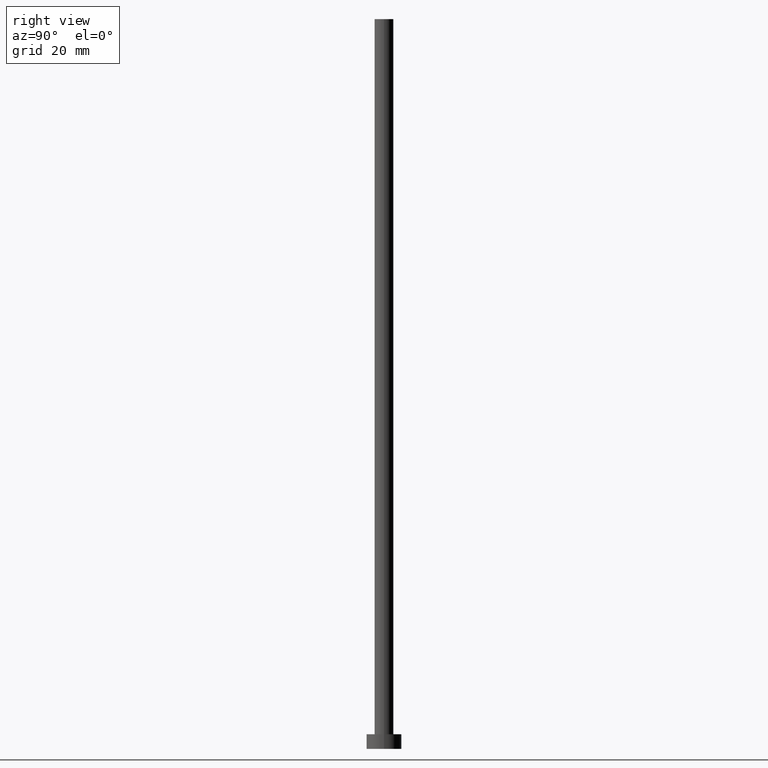
[diagram: clean part render]
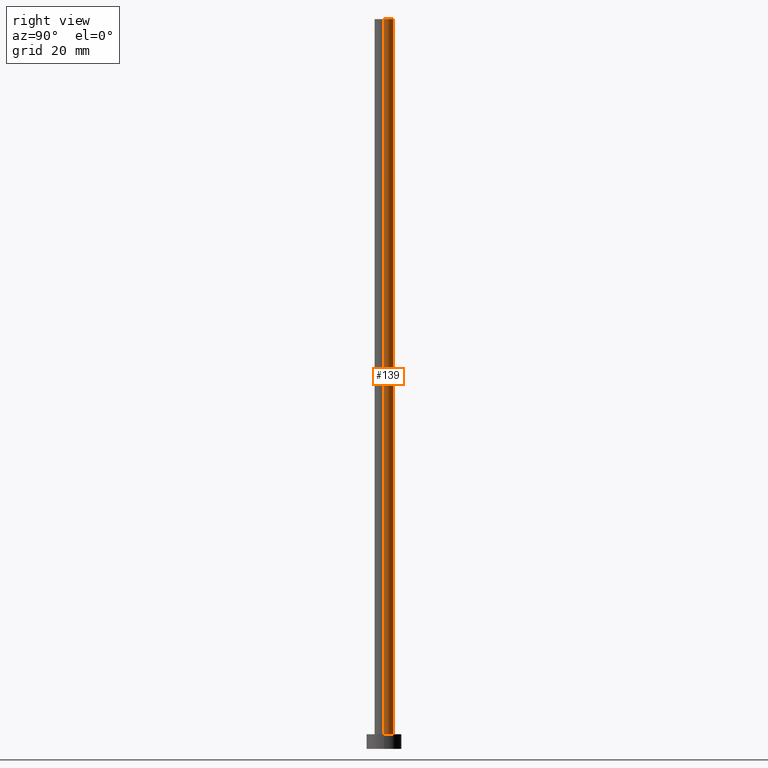
[diagram: same view with one face highlighted and labeled with its STEP entity id]
A machine part, right view. The second image highlights one B-rep face of the part: STEP entity #139.
In plain terms, the highlighted cylindrical surface (edge-blend (fillet) strip) has radius 3.25 mm, axis along (-0, -0, -1).
Its self-contained STEP definition (entity closure, byte-faithful):
#8 = LINE ( 'NONE', #184, #203 ) ;
#10 = ORIENTED_EDGE ( 'NONE', *, *, #19, .T. ) ;
#14 = VERTEX_POINT ( 'NONE', #55 ) ;
#15 = DIRECTION ( 'NONE',  ( 1.000000000000000000, 0.000000000000000000, 0.000000000000000000 ) ) ;
#16 = CARTESIAN_POINT ( 'NONE',  ( 0.000000000000000000, 0.000000000000000000, 250.0000000000000000 ) ) ;
#19 = EDGE_CURVE ( 'NONE', #149, #124, #57, .T. ) ;
#22 = EDGE_CURVE ( 'NONE', #14, #124, #131, .T. ) ;
#27 = AXIS2_PLACEMENT_3D ( 'NONE', #148, #188, #246 ) ;
#55 = CARTESIAN_POINT ( 'NONE',  ( -3.250000000000000444, 0.000000000000000000, 250.0000000000000000 ) ) ;
#56 = DIRECTION ( 'NONE',  ( -1.000000000000000000, 0.000000000000000000, 0.000000000000000000 ) ) ;
#57 = CIRCLE ( 'NONE', #27, 3.250000000000000444 ) ;
#62 = AXIS2_PLACEMENT_3D ( 'NONE', #16, #192, #15 ) ;
#68 = ORIENTED_EDGE ( 'NONE', *, *, #22, .F. ) ;
#73 = ORIENTED_EDGE ( 'NONE', *, *, #144, .F. ) ;
#74 = EDGE_LOOP ( 'NONE', ( #73, #140, #10, #68 ) ) ;
#76 = DIRECTION ( 'NONE',  ( -0.000000000000000000, -0.000000000000000000, -1.000000000000000000 ) ) ;
#80 = FACE_OUTER_BOUND ( 'NONE', #74, .T. ) ;
#96 = AXIS2_PLACEMENT_3D ( 'NONE', #190, #115, #56 ) ;
#111 = VERTEX_POINT ( 'NONE', #152 ) ;
#115 = DIRECTION ( 'NONE',  ( -0.000000000000000000, -0.000000000000000000, -1.000000000000000000 ) ) ;
#116 = EDGE_CURVE ( 'NONE', #111, #149, #8, .T. ) ;
#124 = VERTEX_POINT ( 'NONE', #162 ) ;
#131 = LINE ( 'NONE', #251, #204 ) ;
#132 = CARTESIAN_POINT ( 'NONE',  ( 3.250000000000000444, 3.980102097228898231E-16, 5.000000000000000000 ) ) ;
#139 = ADVANCED_FACE ( 'NONE', ( #80 ), #189, .T. ) ;
#140 = ORIENTED_EDGE ( 'NONE', *, *, #116, .T. ) ;
#144 = EDGE_CURVE ( 'NONE', #111, #14, #167, .T. ) ;
#148 = CARTESIAN_POINT ( 'NONE',  ( 0.000000000000000000, 0.000000000000000000, 5.000000000000000000 ) ) ;
#149 = VERTEX_POINT ( 'NONE', #132 ) ;
#152 = CARTESIAN_POINT ( 'NONE',  ( 3.250000000000000444, 3.980102097228898231E-16, 250.0000000000000000 ) ) ;
#162 = CARTESIAN_POINT ( 'NONE',  ( -3.250000000000000444, 0.000000000000000000, 5.000000000000000000 ) ) ;
#167 = CIRCLE ( 'NONE', #62, 3.250000000000000444 ) ;
#180 = DIRECTION ( 'NONE',  ( -0.000000000000000000, -0.000000000000000000, -1.000000000000000000 ) ) ;
#184 = CARTESIAN_POINT ( 'NONE',  ( 3.250000000000000444, 3.980102097228898231E-16, 250.0000000000000000 ) ) ;
#188 = DIRECTION ( 'NONE',  ( 0.000000000000000000, 0.000000000000000000, 1.000000000000000000 ) ) ;
#189 = CYLINDRICAL_SURFACE ( 'NONE', #96, 3.250000000000000444 ) ;
#190 = CARTESIAN_POINT ( 'NONE',  ( 0.000000000000000000, 0.000000000000000000, 250.0000000000000000 ) ) ;
#192 = DIRECTION ( 'NONE',  ( 0.000000000000000000, 0.000000000000000000, 1.000000000000000000 ) ) ;
#203 = VECTOR ( 'NONE', #180, 1000.000000000000000 ) ;
#204 = VECTOR ( 'NONE', #76, 1000.000000000000000 ) ;
#246 = DIRECTION ( 'NONE',  ( 1.000000000000000000, 0.000000000000000000, 0.000000000000000000 ) ) ;
#251 = CARTESIAN_POINT ( 'NONE',  ( -3.250000000000000444, 0.000000000000000000, 250.0000000000000000 ) ) ;